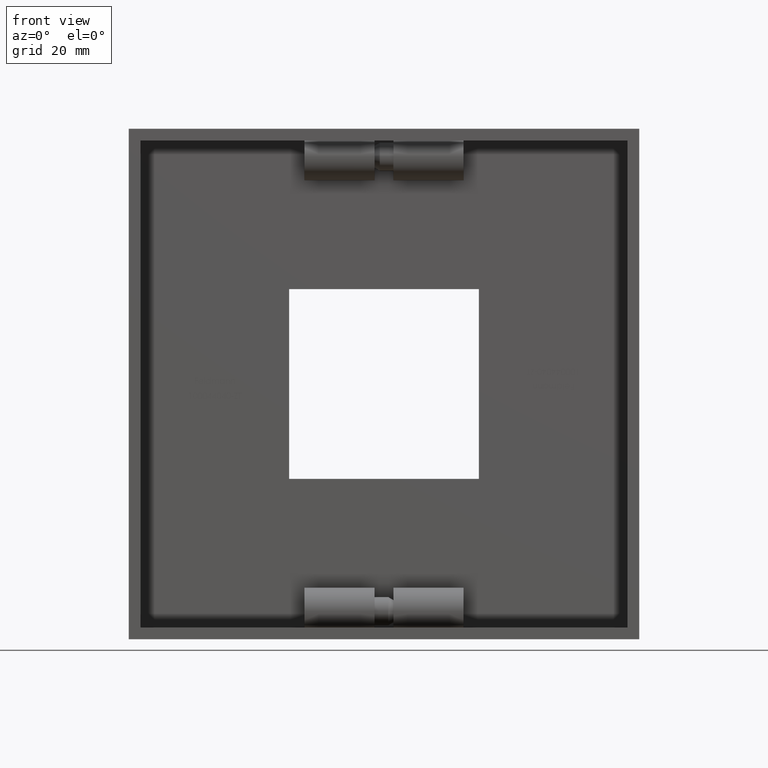
[diagram: clean part render]
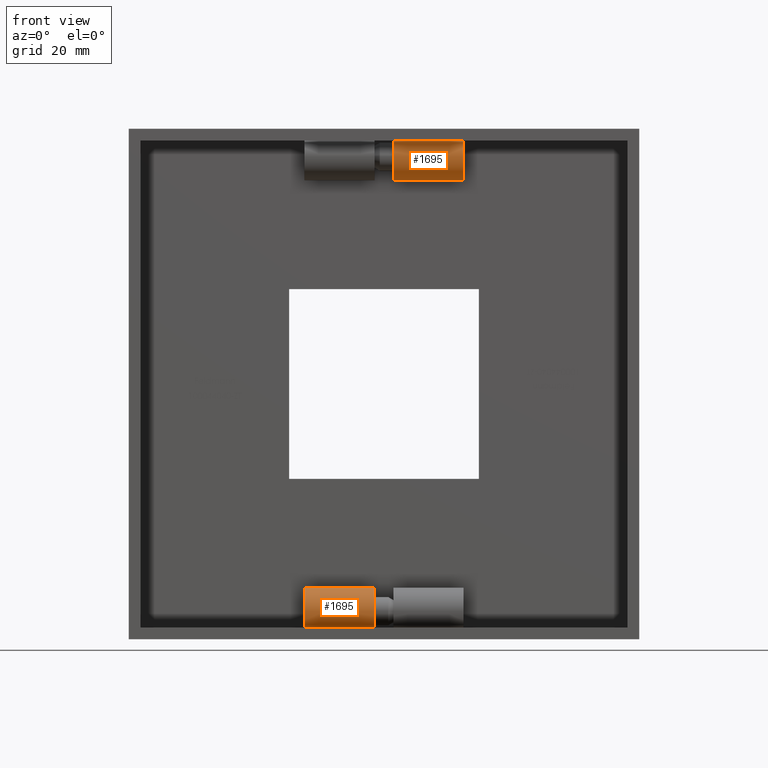
[diagram: same view with one multi-face feature highlighted, each face labeled with its STEP entity id]
A machine part, front view. The highlighted faces form ONE feature: a constant-radius fillet chain: 2 tangent blend faces with common blend radius 5 mm. The faces share edges in the B-rep.
Their STEP definitions:
[1] entity #1695 (Cylinder):
#196 = CIRCLE ( 'NONE', #14960, 4.999999999999997300 ) ;
#266 = AXIS2_PLACEMENT_3D ( 'NONE', #4238, #15097, #7925 ) ;
#373 = CARTESIAN_POINT ( 'NONE',  ( 10.25000000000000900, 15.42928578572857400, -52.00000000000000000 ) ) ;
#425 = DIRECTION ( 'NONE',  ( 1.000000000000000000, 0.0000000000000000000, 1.273191542001326800E-016 ) ) ;
#546 = CARTESIAN_POINT ( 'NONE',  ( 10.25000000000000900, 22.50000000000000400, -44.92928578572858100 ) ) ;
#746 = LINE ( 'NONE', #373, #15564 ) ;
#1239 = CARTESIAN_POINT ( 'NONE',  ( 25.25000000000000700, 22.50000000000000400, -44.92928578572858100 ) ) ;
#1695 = ADVANCED_FACE ( 'NONE', ( #10625 ), #10994, .T. ) ;
#2406 = CARTESIAN_POINT ( 'NONE',  ( 10.25000000000000900, 22.50000000000000000, -44.92928578572857400 ) ) ;
#2433 = CARTESIAN_POINT ( 'NONE',  ( 10.25000000000000900, 19.00000000000000400, -48.50000000000000000 ) ) ;
#3746 = DIRECTION ( 'NONE',  ( 0.0000000000000000000, 0.0000000000000000000, -1.000000000000000000 ) ) ;
#3813 = CIRCLE ( 'NONE', #266, 4.999999999999997300 ) ;
#4074 = EDGE_CURVE ( 'NONE', #7601, #15131, #3813, .T. ) ;
#4119 = CARTESIAN_POINT ( 'NONE',  ( 10.25000000000000900, 15.42928578572858100, -52.00000000000000700 ) ) ;
#4238 = CARTESIAN_POINT ( 'NONE',  ( 25.25000000000000700, 19.00000000000000400, -48.50000000000000000 ) ) ;
#4314 = EDGE_LOOP ( 'NONE', ( #13648, #10173, #13864, #12302 ) ) ;
#5626 = DIRECTION ( 'NONE',  ( 1.000000000000000000, 0.0000000000000000000, 1.273191542001326800E-016 ) ) ;
#6355 = EDGE_CURVE ( 'NONE', #13475, #6473, #196, .T. ) ;
#6473 = VERTEX_POINT ( 'NONE', #546 ) ;
#6781 = CARTESIAN_POINT ( 'NONE',  ( 10.25000000000000900, 19.00000000000000400, -48.50000000000000000 ) ) ;
#7051 = VECTOR ( 'NONE', #10815, 1000.000000000000000 ) ;
#7601 = VERTEX_POINT ( 'NONE', #11416 ) ;
#7925 = DIRECTION ( 'NONE',  ( 0.0000000000000000000, 0.0000000000000000000, -1.000000000000000000 ) ) ;
#8001 = LINE ( 'NONE', #2406, #7051 ) ;
#8016 = AXIS2_PLACEMENT_3D ( 'NONE', #6781, #5626, #15222 ) ;
#10173 = ORIENTED_EDGE ( 'NONE', *, *, #11679, .F. ) ;
#10625 = FACE_OUTER_BOUND ( 'NONE', #4314, .T. ) ;
#10815 = DIRECTION ( 'NONE',  ( 1.000000000000000000, 0.0000000000000000000, 1.273191542001326800E-016 ) ) ;
#10940 = DIRECTION ( 'NONE',  ( -1.000000000000000000, -0.0000000000000000000, -1.273191542001326800E-016 ) ) ;
#10994 = CYLINDRICAL_SURFACE ( 'NONE', #8016, 4.999999999999997300 ) ;
#11416 = CARTESIAN_POINT ( 'NONE',  ( 25.25000000000000700, 15.42928578572858100, -52.00000000000000700 ) ) ;
#11679 = EDGE_CURVE ( 'NONE', #6473, #15131, #8001, .T. ) ;
#12302 = ORIENTED_EDGE ( 'NONE', *, *, #15212, .T. ) ;
#13475 = VERTEX_POINT ( 'NONE', #4119 ) ;
#13648 = ORIENTED_EDGE ( 'NONE', *, *, #4074, .T. ) ;
#13864 = ORIENTED_EDGE ( 'NONE', *, *, #6355, .F. ) ;
#14960 = AXIS2_PLACEMENT_3D ( 'NONE', #2433, #10940, #3746 ) ;
#15097 = DIRECTION ( 'NONE',  ( -1.000000000000000000, -0.0000000000000000000, -1.273191542001326800E-016 ) ) ;
#15131 = VERTEX_POINT ( 'NONE', #1239 ) ;
#15212 = EDGE_CURVE ( 'NONE', #13475, #7601, #746, .T. ) ;
#15222 = DIRECTION ( 'NONE',  ( 0.0000000000000000000, 0.0000000000000000000, -1.000000000000000000 ) ) ;
#15564 = VECTOR ( 'NONE', #425, 1000.000000000000000 ) ;
[2] entity #1695 (Cylinder):
#196 = CIRCLE ( 'NONE', #14960, 4.999999999999997300 ) ;
#266 = AXIS2_PLACEMENT_3D ( 'NONE', #4238, #15097, #7925 ) ;
#373 = CARTESIAN_POINT ( 'NONE',  ( 10.25000000000000900, 15.42928578572857400, -52.00000000000000000 ) ) ;
#425 = DIRECTION ( 'NONE',  ( 1.000000000000000000, 0.0000000000000000000, 1.273191542001326800E-016 ) ) ;
#546 = CARTESIAN_POINT ( 'NONE',  ( 10.25000000000000900, 22.50000000000000400, -44.92928578572858100 ) ) ;
#746 = LINE ( 'NONE', #373, #15564 ) ;
#1239 = CARTESIAN_POINT ( 'NONE',  ( 25.25000000000000700, 22.50000000000000400, -44.92928578572858100 ) ) ;
#1695 = ADVANCED_FACE ( 'NONE', ( #10625 ), #10994, .T. ) ;
#2406 = CARTESIAN_POINT ( 'NONE',  ( 10.25000000000000900, 22.50000000000000000, -44.92928578572857400 ) ) ;
#2433 = CARTESIAN_POINT ( 'NONE',  ( 10.25000000000000900, 19.00000000000000400, -48.50000000000000000 ) ) ;
#3746 = DIRECTION ( 'NONE',  ( 0.0000000000000000000, 0.0000000000000000000, -1.000000000000000000 ) ) ;
#3813 = CIRCLE ( 'NONE', #266, 4.999999999999997300 ) ;
#4074 = EDGE_CURVE ( 'NONE', #7601, #15131, #3813, .T. ) ;
#4119 = CARTESIAN_POINT ( 'NONE',  ( 10.25000000000000900, 15.42928578572858100, -52.00000000000000700 ) ) ;
#4238 = CARTESIAN_POINT ( 'NONE',  ( 25.25000000000000700, 19.00000000000000400, -48.50000000000000000 ) ) ;
#4314 = EDGE_LOOP ( 'NONE', ( #13648, #10173, #13864, #12302 ) ) ;
#5626 = DIRECTION ( 'NONE',  ( 1.000000000000000000, 0.0000000000000000000, 1.273191542001326800E-016 ) ) ;
#6355 = EDGE_CURVE ( 'NONE', #13475, #6473, #196, .T. ) ;
#6473 = VERTEX_POINT ( 'NONE', #546 ) ;
#6781 = CARTESIAN_POINT ( 'NONE',  ( 10.25000000000000900, 19.00000000000000400, -48.50000000000000000 ) ) ;
#7051 = VECTOR ( 'NONE', #10815, 1000.000000000000000 ) ;
#7601 = VERTEX_POINT ( 'NONE', #11416 ) ;
#7925 = DIRECTION ( 'NONE',  ( 0.0000000000000000000, 0.0000000000000000000, -1.000000000000000000 ) ) ;
#8001 = LINE ( 'NONE', #2406, #7051 ) ;
#8016 = AXIS2_PLACEMENT_3D ( 'NONE', #6781, #5626, #15222 ) ;
#10173 = ORIENTED_EDGE ( 'NONE', *, *, #11679, .F. ) ;
#10625 = FACE_OUTER_BOUND ( 'NONE', #4314, .T. ) ;
#10815 = DIRECTION ( 'NONE',  ( 1.000000000000000000, 0.0000000000000000000, 1.273191542001326800E-016 ) ) ;
#10940 = DIRECTION ( 'NONE',  ( -1.000000000000000000, -0.0000000000000000000, -1.273191542001326800E-016 ) ) ;
#10994 = CYLINDRICAL_SURFACE ( 'NONE', #8016, 4.999999999999997300 ) ;
#11416 = CARTESIAN_POINT ( 'NONE',  ( 25.25000000000000700, 15.42928578572858100, -52.00000000000000700 ) ) ;
#11679 = EDGE_CURVE ( 'NONE', #6473, #15131, #8001, .T. ) ;
#12302 = ORIENTED_EDGE ( 'NONE', *, *, #15212, .T. ) ;
#13475 = VERTEX_POINT ( 'NONE', #4119 ) ;
#13648 = ORIENTED_EDGE ( 'NONE', *, *, #4074, .T. ) ;
#13864 = ORIENTED_EDGE ( 'NONE', *, *, #6355, .F. ) ;
#14960 = AXIS2_PLACEMENT_3D ( 'NONE', #2433, #10940, #3746 ) ;
#15097 = DIRECTION ( 'NONE',  ( -1.000000000000000000, -0.0000000000000000000, -1.273191542001326800E-016 ) ) ;
#15131 = VERTEX_POINT ( 'NONE', #1239 ) ;
#15212 = EDGE_CURVE ( 'NONE', #13475, #7601, #746, .T. ) ;
#15222 = DIRECTION ( 'NONE',  ( 0.0000000000000000000, 0.0000000000000000000, -1.000000000000000000 ) ) ;
#15564 = VECTOR ( 'NONE', #425, 1000.000000000000000 ) ;